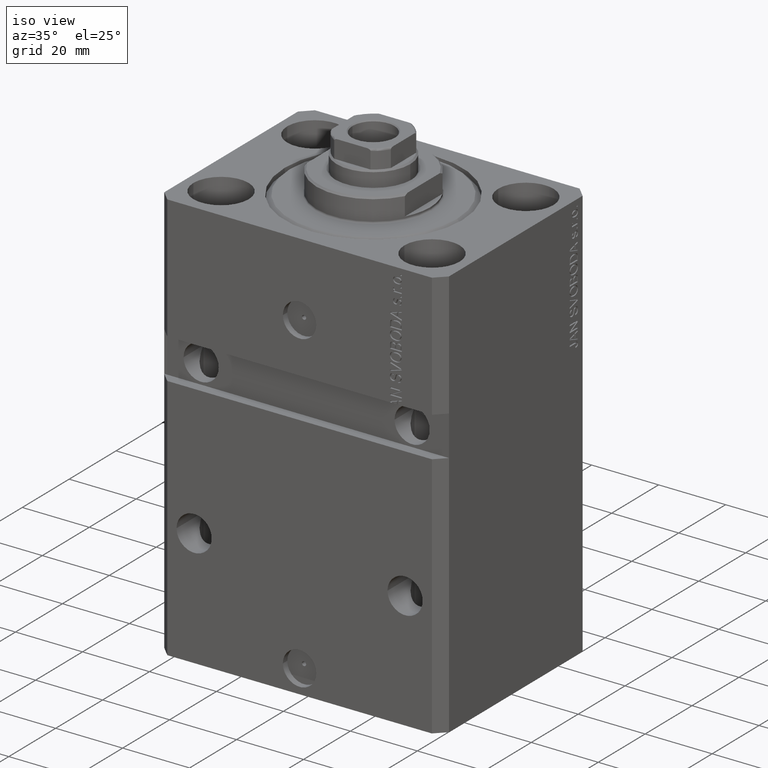
[diagram: clean part render]
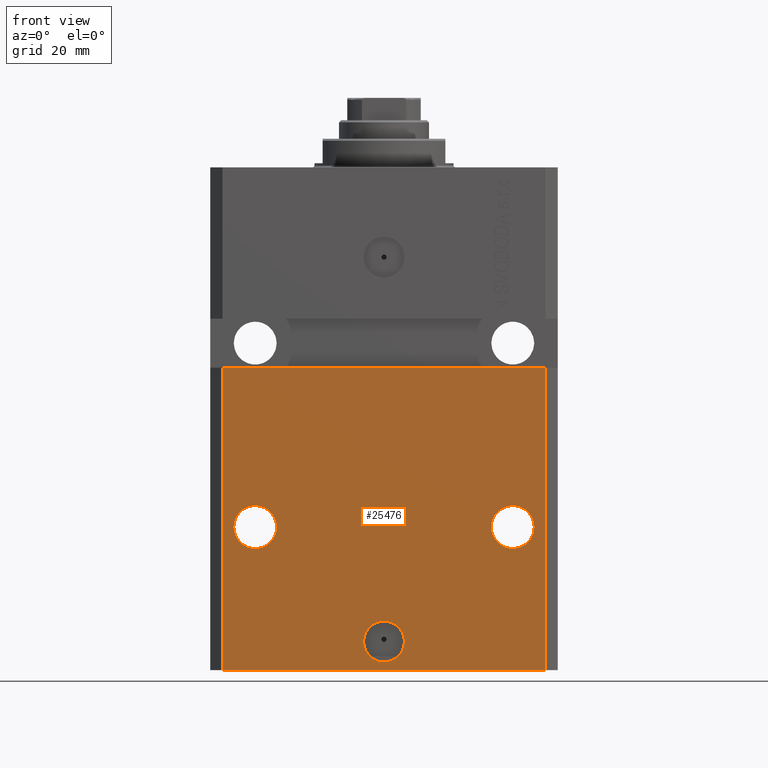
[diagram: tour spotlight — one face highlighted and labeled with its STEP entity id]
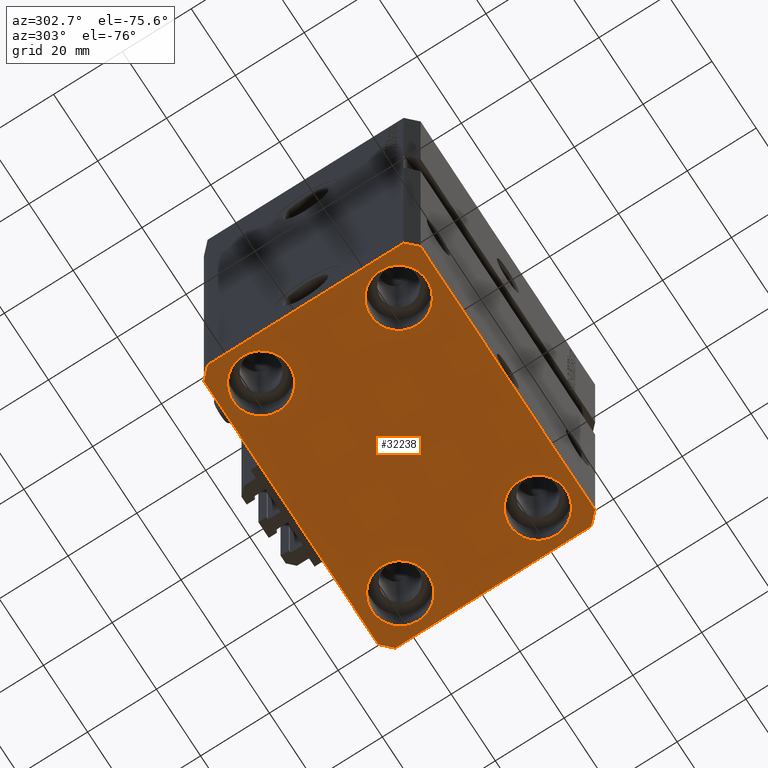
[diagram: tour spotlight — one face highlighted and labeled with its STEP entity id]
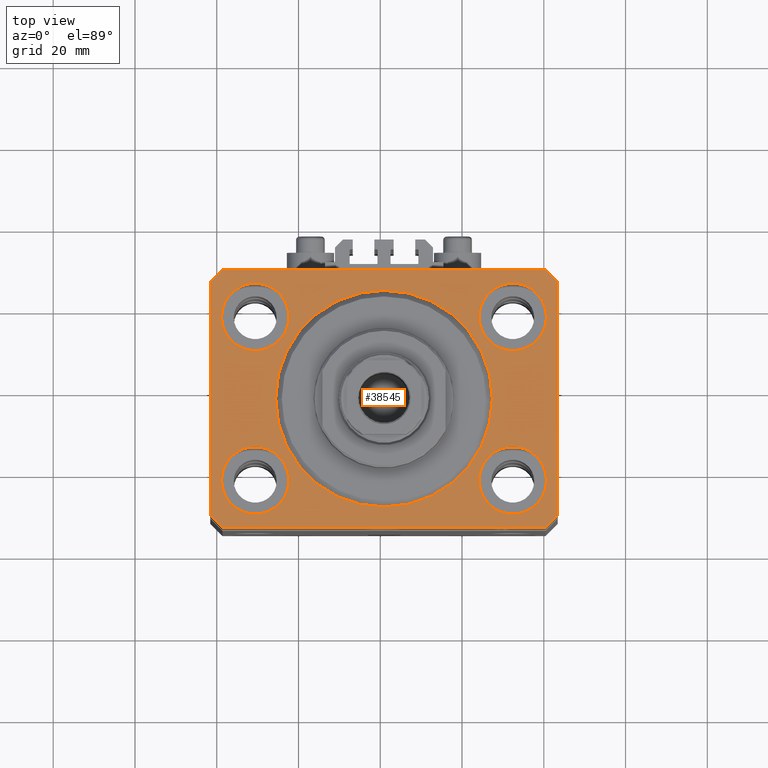
[diagram: tour spotlight — one face highlighted and labeled with its STEP entity id]
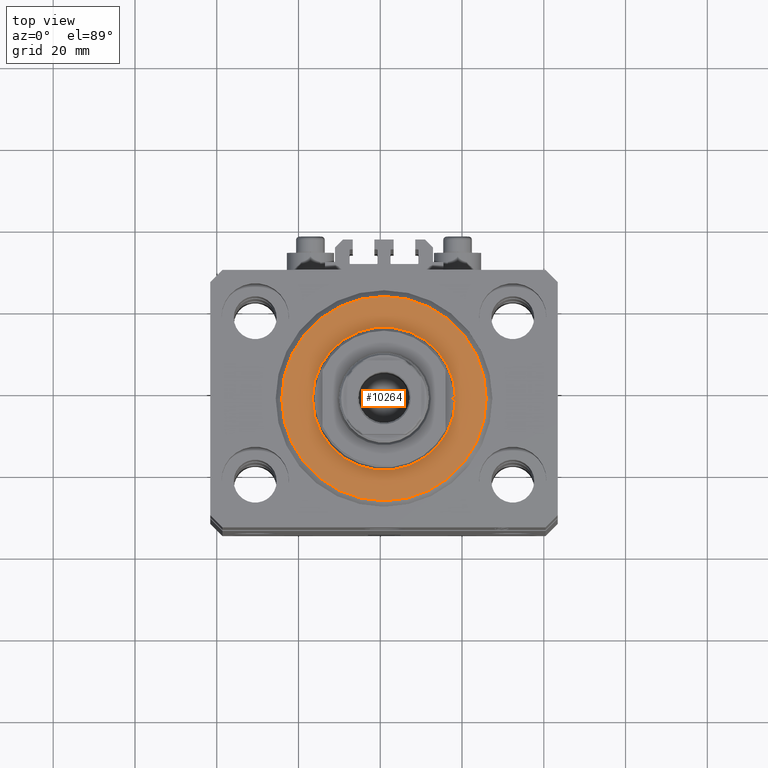
[diagram: tour spotlight — one face highlighted and labeled with its STEP entity id]
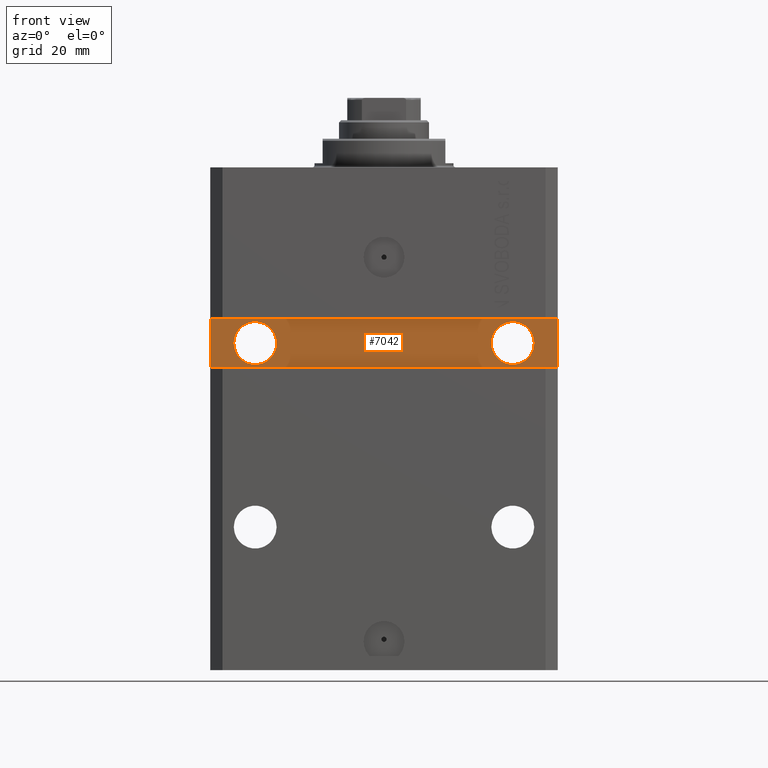
[diagram: tour spotlight — one face highlighted and labeled with its STEP entity id]
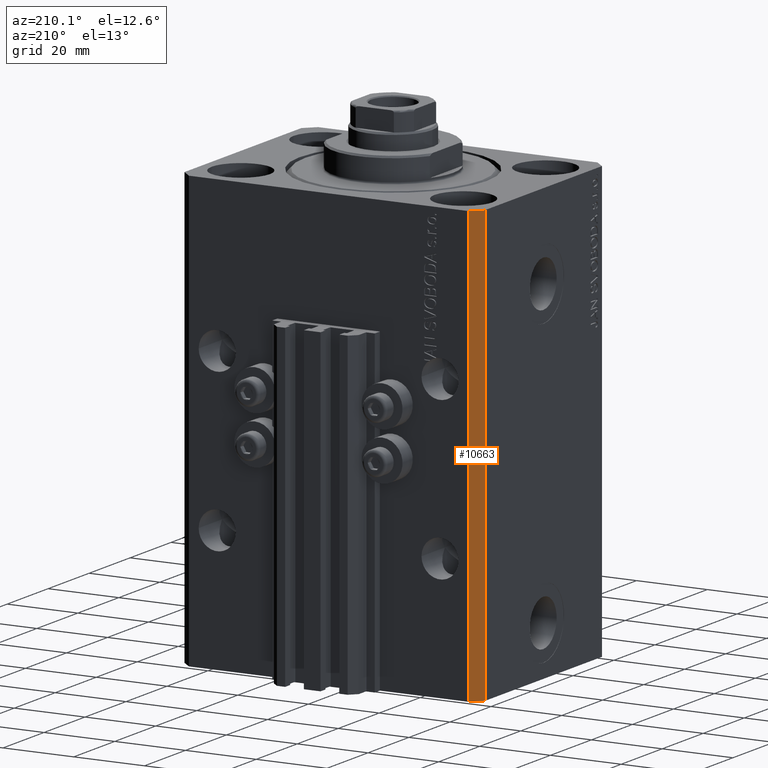
[diagram: tour spotlight — one face highlighted and labeled with its STEP entity id]
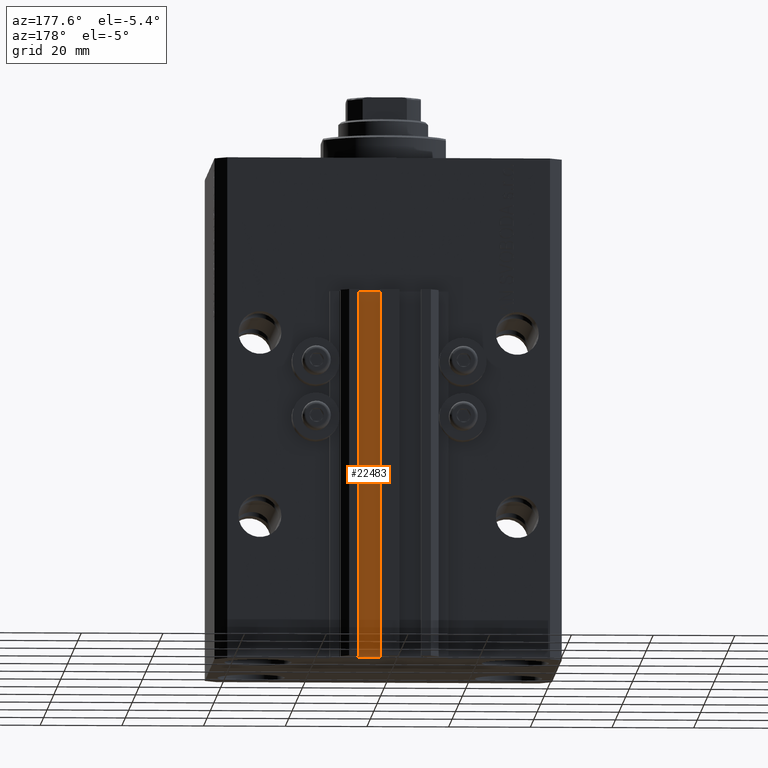
[diagram: tour spotlight — one face highlighted and labeled with its STEP entity id]
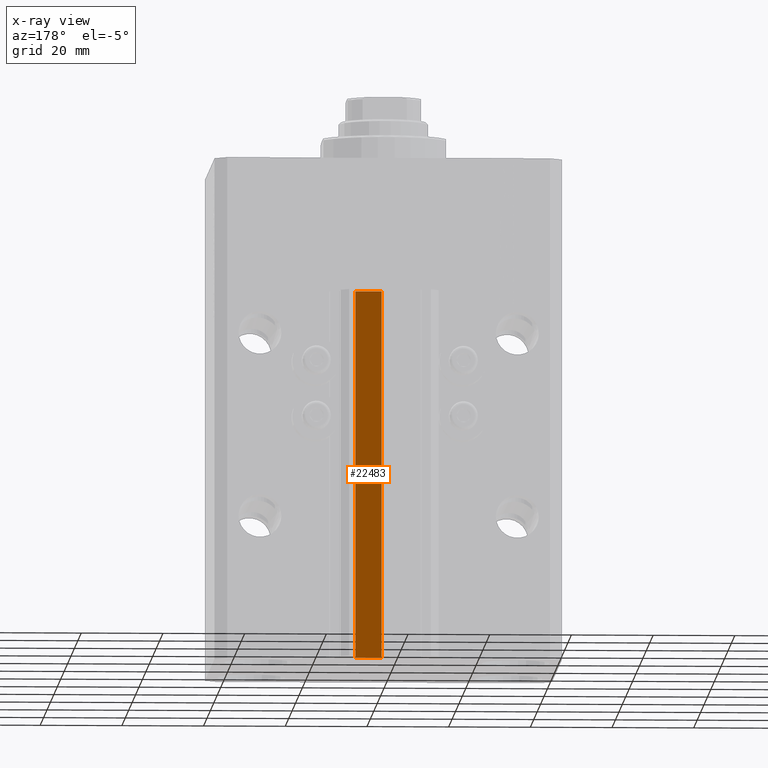
[diagram: x-ray of the same camera — body ghosted, this tour face saturated]
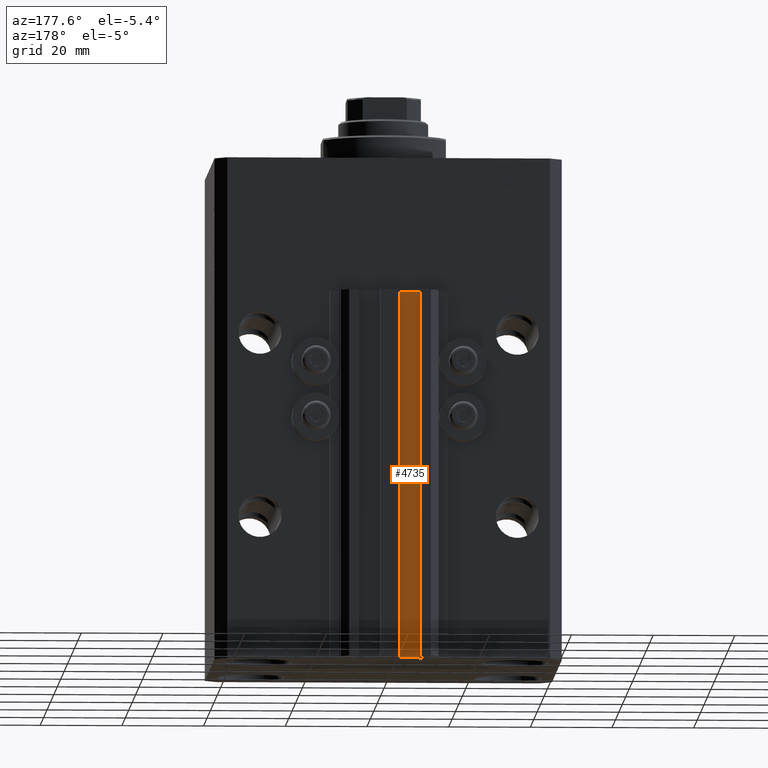
[diagram: tour spotlight — one face highlighted and labeled with its STEP entity id]
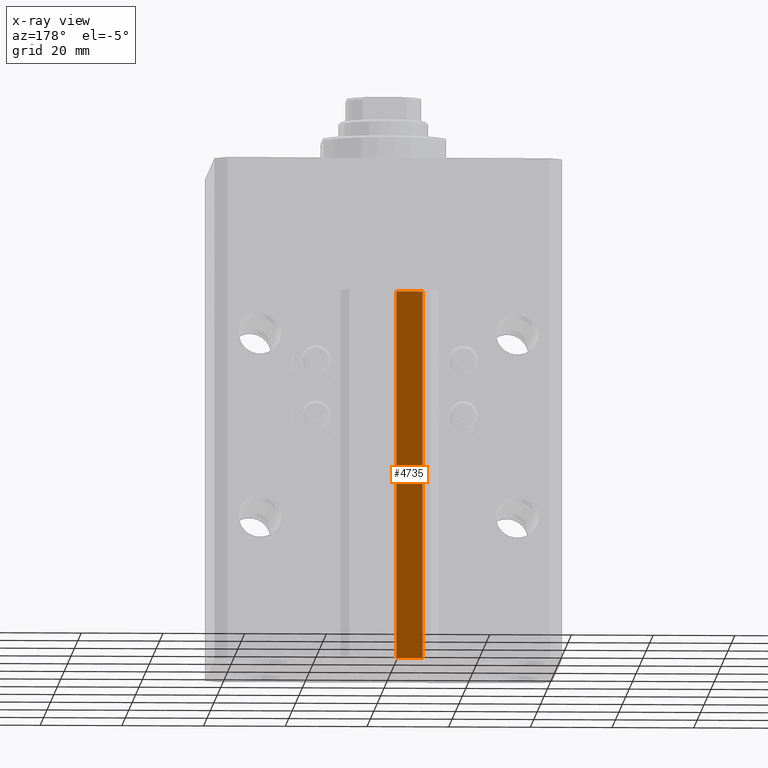
[diagram: x-ray of the same camera — body ghosted, this tour face saturated]
A machine part: a face-by-face anatomy tour. The part has 1107 B-rep faces; the first image is the clean iso view, then the 8 largest visible faces are spotlighted one at a time (largest first), each with its STEP entity span.

Face 1 — front view, entity #25476. In plain terms, the highlighted planar face has unit normal (0, -1, 0).
Definition (entity closure, byte-faithful):
#167 = CIRCLE ( 'NONE', #38984, 5.000000000000006217 ) ;
#1099 = VERTEX_POINT ( 'NONE', #45845 ) ;
#1200 = VERTEX_POINT ( 'NONE', #10046 ) ;
#2003 = DIRECTION ( 'NONE',  ( 1.000000000000000000, 0.000000000000000000, 0.000000000000000000 ) ) ;
#2201 = DIRECTION ( 'NONE',  ( 0.000000000000000000, -1.000000000000000000, 0.000000000000000000 ) ) ;
#2671 = LINE ( 'NONE', #24330, #44549 ) ;
#2808 = CARTESIAN_POINT ( 'NONE',  ( 31.50000000000001421, -31.49999999999999289, -88.00000000000000000 ) ) ;
#3024 = CIRCLE ( 'NONE', #25570, 5.249999999999997335 ) ;
#3371 = EDGE_CURVE ( 'NONE', #11616, #26621, #40846, .T. ) ;
#3809 = EDGE_CURVE ( 'NONE', #8807, #14315, #44738, .T. ) ;
#4399 = ORIENTED_EDGE ( 'NONE', *, *, #7545, .T. ) ;
#4445 = ORIENTED_EDGE ( 'NONE', *, *, #46640, .F. ) ;
#5144 = FACE_OUTER_BOUND ( 'NONE', #34444, .T. ) ;
#5614 = FACE_BOUND ( 'NONE', #31704, .T. ) ;
#6061 = CIRCLE ( 'NONE', #8393, 5.249999999999997335 ) ;
#7179 = DIRECTION ( 'NONE',  ( 1.176083712526788232E-16, -1.000000000000000000, 0.000000000000000000 ) ) ;
#7545 = EDGE_CURVE ( 'NONE', #1099, #1200, #36430, .T. ) ;
#7580 = CIRCLE ( 'NONE', #31676, 5.249999999999997335 ) ;
#7808 = EDGE_CURVE ( 'NONE', #29889, #24977, #7580, .T. ) ;
#7971 = CARTESIAN_POINT ( 'NONE',  ( 5.000000000000006217, -31.50000000000000000, -115.9999999999999858 ) ) ;
#8047 = DIRECTION ( 'NONE',  ( 1.176083712526788232E-16, -1.000000000000000000, 0.000000000000000000 ) ) ;
#8393 = AXIS2_PLACEMENT_3D ( 'NONE', #20031, #27342, #2003 ) ;
#8807 = VERTEX_POINT ( 'NONE', #44226 ) ;
#10046 = CARTESIAN_POINT ( 'NONE',  ( 39.50000000000001421, -31.49999999999999289, -48.99999999999997868 ) ) ;
#10462 = EDGE_CURVE ( 'NONE', #14315, #8807, #3024, .T. ) ;
#10642 = CARTESIAN_POINT ( 'NONE',  ( 39.50000000000000711, -31.50000000000000000, -123.0000000000000000 ) ) ;
#10644 = DIRECTION ( 'NONE',  ( 1.000000000000000000, 0.000000000000000000, 0.000000000000000000 ) ) ;
#11616 = VERTEX_POINT ( 'NONE', #34175 ) ;
#12926 = DIRECTION ( 'NONE',  ( 0.000000000000000000, -0.000000000000000000, -1.000000000000000000 ) ) ;
#12941 = DIRECTION ( 'NONE',  ( -1.000000000000000000, 0.000000000000000000, 0.000000000000000000 ) ) ;
#14315 = VERTEX_POINT ( 'NONE', #42967 ) ;
#14338 = AXIS2_PLACEMENT_3D ( 'NONE', #31188, #2201, #12926 ) ;
#15404 = EDGE_CURVE ( 'NONE', #41966, #36215, #27854, .T. ) ;
#15729 = CARTESIAN_POINT ( 'NONE',  ( -42.50000000000000000, -31.50000000000000711, -48.99999999999999289 ) ) ;
#16588 = DIRECTION ( 'NONE',  ( 1.176083712526788232E-16, -1.000000000000000000, 0.000000000000000000 ) ) ;
#16781 = AXIS2_PLACEMENT_3D ( 'NONE', #26223, #40805, #10644 ) ;
#18271 = CARTESIAN_POINT ( 'NONE',  ( 36.75000000000001421, -31.49999999999999289, -88.00000000000000000 ) ) ;
#19362 = ORIENTED_EDGE ( 'NONE', *, *, #7808, .F. ) ;
#20031 = CARTESIAN_POINT ( 'NONE',  ( 31.50000000000001421, -31.49999999999999289, -88.00000000000000000 ) ) ;
#20037 = EDGE_LOOP ( 'NONE', ( #24264, #38813 ) ) ;
#20895 = VECTOR ( 'NONE', #35619, 1000.000000000000000 ) ;
#21424 = AXIS2_PLACEMENT_3D ( 'NONE', #27779, #16588, #12941 ) ;
#22535 = DIRECTION ( 'NONE',  ( 1.000000000000000000, 1.632680918566406300E-16, 1.632680918566406300E-16 ) ) ;
#23693 = EDGE_CURVE ( 'NONE', #41966, #1099, #2671, .T. ) ;
#23968 = CARTESIAN_POINT ( 'NONE',  ( -39.50000000000000711, -31.50000000000000000, -123.0000000000000000 ) ) ;
#24264 = ORIENTED_EDGE ( 'NONE', *, *, #3809, .F. ) ;
#24330 = CARTESIAN_POINT ( 'NONE',  ( -39.50000000000000711, -31.50000000000000000, -123.0000000000000000 ) ) ;
#24977 = VERTEX_POINT ( 'NONE', #37384 ) ;
#25476 = ADVANCED_FACE ( 'NONE', ( #5614, #42599, #38473, #5144 ), #28003, .T. ) ;
#25488 = DIRECTION ( 'NONE',  ( 0.000000000000000000, 0.000000000000000000, 1.000000000000000000 ) ) ;
#25570 = AXIS2_PLACEMENT_3D ( 'NONE', #36761, #36519, #44062 ) ;
#26223 = CARTESIAN_POINT ( 'NONE',  ( 0.000000000000000000, -31.50000000000000000, -115.9999999999999858 ) ) ;
#26621 = VERTEX_POINT ( 'NONE', #7971 ) ;
#27342 = DIRECTION ( 'NONE',  ( 1.176083712526788232E-16, -1.000000000000000000, 0.000000000000000000 ) ) ;
#27779 = CARTESIAN_POINT ( 'NONE',  ( -31.50000000000001421, -31.50000000000000711, -88.00000000000000000 ) ) ;
#27854 = LINE ( 'NONE', #23968, #20895 ) ;
#28003 = PLANE ( 'NONE',  #14338 ) ;
#29020 = ORIENTED_EDGE ( 'NONE', *, *, #23693, .T. ) ;
#29889 = VERTEX_POINT ( 'NONE', #18271 ) ;
#29947 = CARTESIAN_POINT ( 'NONE',  ( 0.000000000000000000, -31.50000000000000000, -115.9999999999999858 ) ) ;
#31188 = CARTESIAN_POINT ( 'NONE',  ( -39.50000000000000711, -31.50000000000000000, -123.0000000000000000 ) ) ;
#31676 = AXIS2_PLACEMENT_3D ( 'NONE', #2808, #7179, #36372 ) ;
#31704 = EDGE_LOOP ( 'NONE', ( #4445, #38725 ) ) ;
#33159 = ORIENTED_EDGE ( 'NONE', *, *, #37001, .F. ) ;
#33790 = EDGE_CURVE ( 'NONE', #36215, #1200, #37611, .T. ) ;
#34175 = CARTESIAN_POINT ( 'NONE',  ( -5.000000000000006217, -31.50000000000000000, -115.9999999999999858 ) ) ;
#34444 = EDGE_LOOP ( 'NONE', ( #39042, #40773, #29020, #4399 ) ) ;
#35619 = DIRECTION ( 'NONE',  ( 0.000000000000000000, 0.000000000000000000, 1.000000000000000000 ) ) ;
#36215 = VERTEX_POINT ( 'NONE', #48142 ) ;
#36372 = DIRECTION ( 'NONE',  ( 1.000000000000000000, 0.000000000000000000, 0.000000000000000000 ) ) ;
#36430 = LINE ( 'NONE', #10642, #39446 ) ;
#36519 = DIRECTION ( 'NONE',  ( 1.176083712526788232E-16, -1.000000000000000000, 0.000000000000000000 ) ) ;
#36761 = CARTESIAN_POINT ( 'NONE',  ( -31.50000000000001421, -31.50000000000000711, -88.00000000000000000 ) ) ;
#37001 = EDGE_CURVE ( 'NONE', #24977, #29889, #6061, .T. ) ;
#37384 = CARTESIAN_POINT ( 'NONE',  ( 26.25000000000001776, -31.49999999999999289, -88.00000000000000000 ) ) ;
#37541 = CARTESIAN_POINT ( 'NONE',  ( -39.50000000000000711, -31.50000000000000000, -123.0000000000000000 ) ) ;
#37611 = LINE ( 'NONE', #15729, #38575 ) ;
#38473 = FACE_BOUND ( 'NONE', #20037, .T. ) ;
#38575 = VECTOR ( 'NONE', #22535, 1000.000000000000000 ) ;
#38725 = ORIENTED_EDGE ( 'NONE', *, *, #3371, .F. ) ;
#38813 = ORIENTED_EDGE ( 'NONE', *, *, #10462, .F. ) ;
#38984 = AXIS2_PLACEMENT_3D ( 'NONE', #29947, #8047, #45507 ) ;
#39042 = ORIENTED_EDGE ( 'NONE', *, *, #33790, .F. ) ;
#39446 = VECTOR ( 'NONE', #25488, 1000.000000000000000 ) ;
#39643 = DIRECTION ( 'NONE',  ( 1.000000000000000000, 0.000000000000000000, 0.000000000000000000 ) ) ;
#39999 = EDGE_LOOP ( 'NONE', ( #19362, #33159 ) ) ;
#40773 = ORIENTED_EDGE ( 'NONE', *, *, #15404, .F. ) ;
#40805 = DIRECTION ( 'NONE',  ( 1.176083712526788232E-16, -1.000000000000000000, 0.000000000000000000 ) ) ;
#40846 = CIRCLE ( 'NONE', #16781, 5.000000000000006217 ) ;
#41966 = VERTEX_POINT ( 'NONE', #37541 ) ;
#42599 = FACE_BOUND ( 'NONE', #39999, .T. ) ;
#42967 = CARTESIAN_POINT ( 'NONE',  ( -36.75000000000001421, -31.50000000000000711, -88.00000000000000000 ) ) ;
#44062 = DIRECTION ( 'NONE',  ( -1.000000000000000000, 0.000000000000000000, 0.000000000000000000 ) ) ;
#44226 = CARTESIAN_POINT ( 'NONE',  ( -26.25000000000001776, -31.50000000000000711, -88.00000000000000000 ) ) ;
#44549 = VECTOR ( 'NONE', #39643, 1000.000000000000000 ) ;
#44738 = CIRCLE ( 'NONE', #21424, 5.249999999999997335 ) ;
#45507 = DIRECTION ( 'NONE',  ( 1.000000000000000000, 0.000000000000000000, 0.000000000000000000 ) ) ;
#45845 = CARTESIAN_POINT ( 'NONE',  ( 39.50000000000000711, -31.50000000000000000, -123.0000000000000000 ) ) ;
#46640 = EDGE_CURVE ( 'NONE', #26621, #11616, #167, .T. ) ;
#48142 = CARTESIAN_POINT ( 'NONE',  ( -39.50000000000000000, -31.50000000000000711, -48.99999999999999289 ) ) ;

Face 2 — auxiliary view, entity #32238. In plain terms, the highlighted planar face has unit normal (0, 0, 1).
Definition (entity closure, byte-faithful):
#286 = AXIS2_PLACEMENT_3D ( 'NONE', #34037, #41348, #41099 ) ;
#339 = ORIENTED_EDGE ( 'NONE', *, *, #539, .F. ) ;
#539 = EDGE_CURVE ( 'NONE', #2208, #47676, #28474, .T. ) ;
#826 = LINE ( 'NONE', #1294, #12340 ) ;
#1099 = VERTEX_POINT ( 'NONE', #45845 ) ;
#1226 = ORIENTED_EDGE ( 'NONE', *, *, #18344, .F. ) ;
#1294 = CARTESIAN_POINT ( 'NONE',  ( -42.50000000000000000, -28.50000000000000000, -123.0000000000000000 ) ) ;
#1647 = EDGE_CURVE ( 'NONE', #32322, #8686, #35320, .T. ) ;
#1648 = LINE ( 'NONE', #42508, #9383 ) ;
#1935 = VERTEX_POINT ( 'NONE', #2810 ) ;
#2208 = VERTEX_POINT ( 'NONE', #2464 ) ;
#2464 = CARTESIAN_POINT ( 'NONE',  ( 39.50000000000056843, 31.50000000000000000, -123.0000000000000000 ) ) ;
#2513 = EDGE_LOOP ( 'NONE', ( #46931, #42410 ) ) ;
#2671 = LINE ( 'NONE', #24330, #44549 ) ;
#2810 = CARTESIAN_POINT ( 'NONE',  ( -42.50000000000000000, 28.50000000000000000, -123.0000000000000000 ) ) ;
#3908 = VERTEX_POINT ( 'NONE', #35546 ) ;
#3918 = DIRECTION ( 'NONE',  ( -0.7071067811865471286, -0.7071067811865479058, 0.000000000000000000 ) ) ;
#3948 = CARTESIAN_POINT ( 'NONE',  ( -31.50000000000000000, 20.00000000000000000, -123.0000000000000000 ) ) ;
#4223 = CARTESIAN_POINT ( 'NONE',  ( -42.50000000000000000, -28.50000000000000000, -123.0000000000000000 ) ) ;
#4956 = CARTESIAN_POINT ( 'NONE',  ( -31.50000000000000000, -20.00000000000000000, -123.0000000000000000 ) ) ;
#5019 = VECTOR ( 'NONE', #24824, 1000.000000000000000 ) ;
#5115 = ORIENTED_EDGE ( 'NONE', *, *, #23270, .T. ) ;
#5175 = CARTESIAN_POINT ( 'NONE',  ( 39.74999999999999289, -20.00000000000000000, -123.0000000000000000 ) ) ;
#5415 = FACE_BOUND ( 'NONE', #2513, .T. ) ;
#6093 = ORIENTED_EDGE ( 'NONE', *, *, #23910, .T. ) ;
#6862 = ORIENTED_EDGE ( 'NONE', *, *, #38240, .T. ) ;
#7369 = LINE ( 'NONE', #33156, #13705 ) ;
#7785 = DIRECTION ( 'NONE',  ( -0.000000000000000000, -0.000000000000000000, 1.000000000000000000 ) ) ;
#8136 = DIRECTION ( 'NONE',  ( 1.000000000000000000, 0.000000000000000000, 0.000000000000000000 ) ) ;
#8227 = CARTESIAN_POINT ( 'NONE',  ( -39.75000000000000000, -20.00000000000000000, -123.0000000000000000 ) ) ;
#8465 = VECTOR ( 'NONE', #3918, 1000.000000000000000 ) ;
#8686 = VERTEX_POINT ( 'NONE', #28200 ) ;
#8905 = CARTESIAN_POINT ( 'NONE',  ( 31.50000000000000000, 20.00000000000001066, -123.0000000000000000 ) ) ;
#9177 = VERTEX_POINT ( 'NONE', #16887 ) ;
#9185 = AXIS2_PLACEMENT_3D ( 'NONE', #21941, #44320, #33373 ) ;
#9383 = VECTOR ( 'NONE', #19894, 1000.000000000000000 ) ;
#9407 = ORIENTED_EDGE ( 'NONE', *, *, #21228, .T. ) ;
#9437 = EDGE_CURVE ( 'NONE', #39550, #41966, #826, .T. ) ;
#9545 = VERTEX_POINT ( 'NONE', #5175 ) ;
#10261 = DIRECTION ( 'NONE',  ( 0.000000000000000000, 0.000000000000000000, 1.000000000000000000 ) ) ;
#10730 = LINE ( 'NONE', #22655, #8465 ) ;
#11030 = DIRECTION ( 'NONE',  ( 0.7071067811865483499, 0.7071067811865466846, 0.000000000000000000 ) ) ;
#11426 = AXIS2_PLACEMENT_3D ( 'NONE', #46051, #10261, #36998 ) ;
#11738 = DIRECTION ( 'NONE',  ( -0.000000000000000000, -0.000000000000000000, 1.000000000000000000 ) ) ;
#11969 = CARTESIAN_POINT ( 'NONE',  ( 23.25000000000000355, -20.00000000000000000, -123.0000000000000000 ) ) ;
#12105 = CARTESIAN_POINT ( 'NONE',  ( -39.50000000000000711, 31.50000000000000000, -123.0000000000000000 ) ) ;
#12340 = VECTOR ( 'NONE', #41203, 1000.000000000000000 ) ;
#12842 = DIRECTION ( 'NONE',  ( 1.000000000000000000, 0.000000000000000000, 0.000000000000000000 ) ) ;
#13328 = DIRECTION ( 'NONE',  ( -0.000000000000000000, -0.000000000000000000, 1.000000000000000000 ) ) ;
#13672 = FACE_OUTER_BOUND ( 'NONE', #47073, .T. ) ;
#13705 = VECTOR ( 'NONE', #11030, 1000.000000000000000 ) ;
#14392 = CARTESIAN_POINT ( 'NONE',  ( -39.75000000000000000, 20.00000000000000000, -123.0000000000000000 ) ) ;
#14501 = ORIENTED_EDGE ( 'NONE', *, *, #9437, .F. ) ;
#15710 = AXIS2_PLACEMENT_3D ( 'NONE', #8905, #39536, #24458 ) ;
#16887 = CARTESIAN_POINT ( 'NONE',  ( 23.25000000000000355, 20.00000000000001066, -123.0000000000000000 ) ) ;
#16959 = CARTESIAN_POINT ( 'NONE',  ( 31.50000000000000000, -20.00000000000000000, -123.0000000000000000 ) ) ;
#18344 = EDGE_CURVE ( 'NONE', #27301, #35967, #20661, .T. ) ;
#18999 = CIRCLE ( 'NONE', #39194, 8.250000000000000000 ) ;
#19196 = CARTESIAN_POINT ( 'NONE',  ( 42.50000000000051870, 28.49999999999995381, -123.0000000000000000 ) ) ;
#19894 = DIRECTION ( 'NONE',  ( 0.000000000000000000, -1.000000000000000000, 0.000000000000000000 ) ) ;
#20661 = LINE ( 'NONE', #38930, #40453 ) ;
#20886 = ORIENTED_EDGE ( 'NONE', *, *, #36368, .T. ) ;
#21228 = EDGE_CURVE ( 'NONE', #9177, #3908, #40560, .T. ) ;
#21538 = AXIS2_PLACEMENT_3D ( 'NONE', #16959, #13328, #12842 ) ;
#21572 = ORIENTED_EDGE ( 'NONE', *, *, #23693, .F. ) ;
#21941 = CARTESIAN_POINT ( 'NONE',  ( 31.50000000000000000, -20.00000000000000000, -123.0000000000000000 ) ) ;
#22093 = CARTESIAN_POINT ( 'NONE',  ( 42.50000000000000711, -28.50000000000000355, -123.0000000000000000 ) ) ;
#22655 = CARTESIAN_POINT ( 'NONE',  ( -39.50000000000000711, 31.50000000000000000, -123.0000000000000000 ) ) ;
#23110 = DIRECTION ( 'NONE',  ( 1.000000000000000000, 0.000000000000000000, 0.000000000000000000 ) ) ;
#23270 = EDGE_CURVE ( 'NONE', #46947, #42358, #47671, .T. ) ;
#23693 = EDGE_CURVE ( 'NONE', #41966, #1099, #2671, .T. ) ;
#23910 = EDGE_CURVE ( 'NONE', #3908, #9177, #29800, .T. ) ;
#24152 = EDGE_CURVE ( 'NONE', #42358, #46947, #26752, .T. ) ;
#24330 = CARTESIAN_POINT ( 'NONE',  ( -39.50000000000000711, -31.50000000000000000, -123.0000000000000000 ) ) ;
#24458 = DIRECTION ( 'NONE',  ( 1.000000000000000000, 0.000000000000000000, 0.000000000000000000 ) ) ;
#24824 = DIRECTION ( 'NONE',  ( -1.000000000000000000, 0.000000000000000000, 0.000000000000000000 ) ) ;
#24829 = EDGE_LOOP ( 'NONE', ( #5115, #43029 ) ) ;
#25335 = EDGE_CURVE ( 'NONE', #8686, #32322, #18999, .T. ) ;
#26752 = CIRCLE ( 'NONE', #40692, 8.250000000000000000 ) ;
#27301 = VERTEX_POINT ( 'NONE', #22093 ) ;
#27477 = CARTESIAN_POINT ( 'NONE',  ( -31.50000000000000000, 20.00000000000000000, -123.0000000000000000 ) ) ;
#28200 = CARTESIAN_POINT ( 'NONE',  ( -23.25000000000000000, 20.00000000000000000, -123.0000000000000000 ) ) ;
#28271 = FACE_BOUND ( 'NONE', #24829, .T. ) ;
#28474 = LINE ( 'NONE', #46477, #5019 ) ;
#29800 = CIRCLE ( 'NONE', #286, 8.249999999999992895 ) ;
#30181 = CIRCLE ( 'NONE', #9185, 8.249999999999992895 ) ;
#30224 = ORIENTED_EDGE ( 'NONE', *, *, #47011, .F. ) ;
#30256 = VECTOR ( 'NONE', #36947, 1000.000000000000114 ) ;
#31221 = PLANE ( 'NONE',  #11426 ) ;
#31288 = EDGE_CURVE ( 'NONE', #1099, #27301, #7369, .T. ) ;
#32238 = ADVANCED_FACE ( 'NONE', ( #28271, #38740, #35801, #5415, #13672 ), #31221, .F. ) ;
#32322 = VERTEX_POINT ( 'NONE', #14392 ) ;
#33156 = CARTESIAN_POINT ( 'NONE',  ( 39.50000000000000711, -31.50000000000000000, -123.0000000000000000 ) ) ;
#33373 = DIRECTION ( 'NONE',  ( 1.000000000000000000, 0.000000000000000000, 0.000000000000000000 ) ) ;
#34037 = CARTESIAN_POINT ( 'NONE',  ( 31.50000000000000000, 20.00000000000001066, -123.0000000000000000 ) ) ;
#34379 = EDGE_LOOP ( 'NONE', ( #9407, #6093 ) ) ;
#34632 = DIRECTION ( 'NONE',  ( 1.000000000000000000, 0.000000000000000000, 0.000000000000000000 ) ) ;
#35040 = DIRECTION ( 'NONE',  ( 8.886653596232072440E-15, 1.000000000000000000, 0.000000000000000000 ) ) ;
#35320 = CIRCLE ( 'NONE', #37684, 8.250000000000000000 ) ;
#35546 = CARTESIAN_POINT ( 'NONE',  ( 39.74999999999999289, 20.00000000000001066, -123.0000000000000000 ) ) ;
#35801 = FACE_BOUND ( 'NONE', #34379, .T. ) ;
#35967 = VERTEX_POINT ( 'NONE', #37966 ) ;
#36368 = EDGE_CURVE ( 'NONE', #38322, #9545, #42529, .T. ) ;
#36456 = ORIENTED_EDGE ( 'NONE', *, *, #40216, .F. ) ;
#36947 = DIRECTION ( 'NONE',  ( -0.7071067811865356934, 0.7071067811865594521, 0.000000000000000000 ) ) ;
#36998 = DIRECTION ( 'NONE',  ( 1.000000000000000000, 0.000000000000000000, -0.000000000000000000 ) ) ;
#37270 = DIRECTION ( 'NONE',  ( 1.000000000000000000, 0.000000000000000000, 0.000000000000000000 ) ) ;
#37541 = CARTESIAN_POINT ( 'NONE',  ( -39.50000000000000711, -31.50000000000000000, -123.0000000000000000 ) ) ;
#37684 = AXIS2_PLACEMENT_3D ( 'NONE', #27477, #7785, #23110 ) ;
#37966 = CARTESIAN_POINT ( 'NONE',  ( 42.50000000000051870, 28.49999999999995381, -123.0000000000000000 ) ) ;
#38240 = EDGE_CURVE ( 'NONE', #9545, #38322, #30181, .T. ) ;
#38307 = ORIENTED_EDGE ( 'NONE', *, *, #38840, .F. ) ;
#38322 = VERTEX_POINT ( 'NONE', #11969 ) ;
#38740 = FACE_BOUND ( 'NONE', #46399, .T. ) ;
#38840 = EDGE_CURVE ( 'NONE', #47676, #1935, #10730, .T. ) ;
#38930 = CARTESIAN_POINT ( 'NONE',  ( 42.50000000000000711, -28.50000000000000355, -123.0000000000000000 ) ) ;
#39194 = AXIS2_PLACEMENT_3D ( 'NONE', #3948, #11738, #37270 ) ;
#39536 = DIRECTION ( 'NONE',  ( -0.000000000000000000, -0.000000000000000000, 1.000000000000000000 ) ) ;
#39550 = VERTEX_POINT ( 'NONE', #4223 ) ;
#39643 = DIRECTION ( 'NONE',  ( 1.000000000000000000, 0.000000000000000000, 0.000000000000000000 ) ) ;
#39895 = AXIS2_PLACEMENT_3D ( 'NONE', #4956, #45827, #34632 ) ;
#40216 = EDGE_CURVE ( 'NONE', #35967, #2208, #45230, .T. ) ;
#40453 = VECTOR ( 'NONE', #35040, 1000.000000000000000 ) ;
#40560 = CIRCLE ( 'NONE', #15710, 8.249999999999992895 ) ;
#40692 = AXIS2_PLACEMENT_3D ( 'NONE', #41225, #45113, #8136 ) ;
#41074 = ORIENTED_EDGE ( 'NONE', *, *, #31288, .F. ) ;
#41099 = DIRECTION ( 'NONE',  ( 1.000000000000000000, 0.000000000000000000, 0.000000000000000000 ) ) ;
#41203 = DIRECTION ( 'NONE',  ( 0.7071067811865471286, -0.7071067811865479058, 0.000000000000000000 ) ) ;
#41225 = CARTESIAN_POINT ( 'NONE',  ( -31.50000000000000000, -20.00000000000000000, -123.0000000000000000 ) ) ;
#41348 = DIRECTION ( 'NONE',  ( -0.000000000000000000, -0.000000000000000000, 1.000000000000000000 ) ) ;
#41619 = CARTESIAN_POINT ( 'NONE',  ( -23.25000000000000000, -20.00000000000000000, -123.0000000000000000 ) ) ;
#41966 = VERTEX_POINT ( 'NONE', #37541 ) ;
#42358 = VERTEX_POINT ( 'NONE', #41619 ) ;
#42410 = ORIENTED_EDGE ( 'NONE', *, *, #25335, .T. ) ;
#42508 = CARTESIAN_POINT ( 'NONE',  ( -42.50000000000000000, 28.50000000000000000, -123.0000000000000000 ) ) ;
#42529 = CIRCLE ( 'NONE', #21538, 8.249999999999992895 ) ;
#43029 = ORIENTED_EDGE ( 'NONE', *, *, #24152, .T. ) ;
#44320 = DIRECTION ( 'NONE',  ( -0.000000000000000000, -0.000000000000000000, 1.000000000000000000 ) ) ;
#44549 = VECTOR ( 'NONE', #39643, 1000.000000000000000 ) ;
#45113 = DIRECTION ( 'NONE',  ( -0.000000000000000000, -0.000000000000000000, 1.000000000000000000 ) ) ;
#45230 = LINE ( 'NONE', #19196, #30256 ) ;
#45827 = DIRECTION ( 'NONE',  ( -0.000000000000000000, -0.000000000000000000, 1.000000000000000000 ) ) ;
#45845 = CARTESIAN_POINT ( 'NONE',  ( 39.50000000000000711, -31.50000000000000000, -123.0000000000000000 ) ) ;
#46051 = CARTESIAN_POINT ( 'NONE',  ( 0.000000000000000000, 0.000000000000000000, -123.0000000000000000 ) ) ;
#46399 = EDGE_LOOP ( 'NONE', ( #20886, #6862 ) ) ;
#46477 = CARTESIAN_POINT ( 'NONE',  ( 39.50000000000056843, 31.50000000000000000, -123.0000000000000000 ) ) ;
#46931 = ORIENTED_EDGE ( 'NONE', *, *, #1647, .T. ) ;
#46947 = VERTEX_POINT ( 'NONE', #8227 ) ;
#47011 = EDGE_CURVE ( 'NONE', #1935, #39550, #1648, .T. ) ;
#47073 = EDGE_LOOP ( 'NONE', ( #339, #36456, #1226, #41074, #21572, #14501, #30224, #38307 ) ) ;
#47671 = CIRCLE ( 'NONE', #39895, 8.250000000000000000 ) ;
#47676 = VERTEX_POINT ( 'NONE', #12105 ) ;

Face 3 — top view, entity #38545. In plain terms, the highlighted planar face has unit normal (0, 0, 1).
Definition (entity closure, byte-faithful):
#369 = CARTESIAN_POINT ( 'NONE',  ( -39.75000000000000000, -20.00000000000000000, 0.000000000000000000 ) ) ;
#514 = DIRECTION ( 'NONE',  ( 0.000000000000000000, 0.000000000000000000, 1.000000000000000000 ) ) ;
#1079 = VERTEX_POINT ( 'NONE', #4500 ) ;
#1685 = ORIENTED_EDGE ( 'NONE', *, *, #27665, .F. ) ;
#1826 = CARTESIAN_POINT ( 'NONE',  ( 39.50000000000000711, -31.50000000000000000, 0.000000000000000000 ) ) ;
#1841 = FACE_BOUND ( 'NONE', #36649, .T. ) ;
#1850 = CARTESIAN_POINT ( 'NONE',  ( 42.50000000000051870, 28.49999999999995381, 0.000000000000000000 ) ) ;
#2040 = EDGE_CURVE ( 'NONE', #44181, #26488, #40749, .T. ) ;
#2060 = EDGE_CURVE ( 'NONE', #1079, #44181, #35895, .T. ) ;
#2105 = VERTEX_POINT ( 'NONE', #31203 ) ;
#2116 = ORIENTED_EDGE ( 'NONE', *, *, #2060, .T. ) ;
#2803 = EDGE_CURVE ( 'NONE', #8570, #4802, #25288, .T. ) ;
#2827 = CARTESIAN_POINT ( 'NONE',  ( -31.50000000000000000, -20.00000000000000000, 0.000000000000000000 ) ) ;
#2989 = ORIENTED_EDGE ( 'NONE', *, *, #20920, .T. ) ;
#3191 = AXIS2_PLACEMENT_3D ( 'NONE', #6914, #21752, #3269 ) ;
#3269 = DIRECTION ( 'NONE',  ( 1.000000000000000000, 0.000000000000000000, 0.000000000000000000 ) ) ;
#3402 = VERTEX_POINT ( 'NONE', #36907 ) ;
#3733 = CIRCLE ( 'NONE', #44146, 26.50000000000000355 ) ;
#4500 = CARTESIAN_POINT ( 'NONE',  ( 39.50000000000056843, 31.50000000000000000, 0.000000000000000000 ) ) ;
#4582 = CIRCLE ( 'NONE', #34862, 8.250000000000000000 ) ;
#4720 = DIRECTION ( 'NONE',  ( 0.000000000000000000, -1.000000000000000000, 0.000000000000000000 ) ) ;
#4768 = DIRECTION ( 'NONE',  ( -0.7071067811865356934, 0.7071067811865594521, 0.000000000000000000 ) ) ;
#4802 = VERTEX_POINT ( 'NONE', #31729 ) ;
#4818 = ORIENTED_EDGE ( 'NONE', *, *, #19152, .F. ) ;
#4825 = DIRECTION ( 'NONE',  ( 0.000000000000000000, 0.000000000000000000, 1.000000000000000000 ) ) ;
#4848 = DIRECTION ( 'NONE',  ( 1.000000000000000000, 0.000000000000000000, -0.000000000000000000 ) ) ;
#5031 = AXIS2_PLACEMENT_3D ( 'NONE', #7063, #43798, #32131 ) ;
#5845 = CIRCLE ( 'NONE', #43907, 8.250000000000000000 ) ;
#5964 = DIRECTION ( 'NONE',  ( 1.000000000000000000, 0.000000000000000000, 0.000000000000000000 ) ) ;
#6448 = FACE_BOUND ( 'NONE', #32554, .T. ) ;
#6486 = CARTESIAN_POINT ( 'NONE',  ( 42.50000000000051870, 28.49999999999995381, 0.000000000000000000 ) ) ;
#6523 = DIRECTION ( 'NONE',  ( 0.000000000000000000, 0.000000000000000000, 1.000000000000000000 ) ) ;
#6914 = CARTESIAN_POINT ( 'NONE',  ( -31.50000000000000000, 20.00000000000000000, 0.000000000000000000 ) ) ;
#7046 = EDGE_CURVE ( 'NONE', #38915, #26048, #38298, .T. ) ;
#7063 = CARTESIAN_POINT ( 'NONE',  ( 0.000000000000000000, 0.000000000000000000, 0.000000000000000000 ) ) ;
#7311 = EDGE_CURVE ( 'NONE', #4802, #8570, #12281, .T. ) ;
#7790 = VERTEX_POINT ( 'NONE', #10831 ) ;
#8269 = CARTESIAN_POINT ( 'NONE',  ( -42.50000000000000000, 28.50000000000000000, 0.000000000000000000 ) ) ;
#8570 = VERTEX_POINT ( 'NONE', #22642 ) ;
#8732 = ORIENTED_EDGE ( 'NONE', *, *, #2803, .F. ) ;
#8854 = DIRECTION ( 'NONE',  ( 8.886653596232072440E-15, 1.000000000000000000, 0.000000000000000000 ) ) ;
#9101 = VERTEX_POINT ( 'NONE', #38319 ) ;
#9608 = FACE_OUTER_BOUND ( 'NONE', #47857, .T. ) ;
#10043 = DIRECTION ( 'NONE',  ( 0.7071067811865483499, 0.7071067811865466846, 0.000000000000000000 ) ) ;
#10155 = VECTOR ( 'NONE', #4768, 1000.000000000000114 ) ;
#10590 = ORIENTED_EDGE ( 'NONE', *, *, #46912, .F. ) ;
#10746 = AXIS2_PLACEMENT_3D ( 'NONE', #21276, #17625, #4848 ) ;
#10831 = CARTESIAN_POINT ( 'NONE',  ( -39.50000000000000711, -31.50000000000000000, 0.000000000000000000 ) ) ;
#11178 = VERTEX_POINT ( 'NONE', #15913 ) ;
#11563 = DIRECTION ( 'NONE',  ( 0.000000000000000000, 0.000000000000000000, 1.000000000000000000 ) ) ;
#12077 = VECTOR ( 'NONE', #43911, 1000.000000000000000 ) ;
#12281 = CIRCLE ( 'NONE', #41790, 8.249999999999992895 ) ;
#12465 = DIRECTION ( 'NONE',  ( 1.000000000000000000, 0.000000000000000000, 0.000000000000000000 ) ) ;
#12543 = ORIENTED_EDGE ( 'NONE', *, *, #7311, .F. ) ;
#12861 = AXIS2_PLACEMENT_3D ( 'NONE', #42709, #40008, #5964 ) ;
#13576 = LINE ( 'NONE', #25007, #30477 ) ;
#13751 = FACE_BOUND ( 'NONE', #40452, .T. ) ;
#13789 = LINE ( 'NONE', #6486, #10155 ) ;
#14592 = CARTESIAN_POINT ( 'NONE',  ( -42.50000000000000000, -28.50000000000000000, 0.000000000000000000 ) ) ;
#14946 = VECTOR ( 'NONE', #10043, 1000.000000000000000 ) ;
#15913 = CARTESIAN_POINT ( 'NONE',  ( 39.74999999999999289, -20.00000000000000000, 0.000000000000000000 ) ) ;
#16742 = DIRECTION ( 'NONE',  ( 1.000000000000000000, 0.000000000000000000, 0.000000000000000000 ) ) ;
#17069 = CARTESIAN_POINT ( 'NONE',  ( 42.50000000000000711, -28.50000000000000355, 0.000000000000000000 ) ) ;
#17389 = FACE_BOUND ( 'NONE', #22451, .T. ) ;
#17625 = DIRECTION ( 'NONE',  ( 0.000000000000000000, 0.000000000000000000, 1.000000000000000000 ) ) ;
#17888 = DIRECTION ( 'NONE',  ( -0.7071067811865471286, -0.7071067811865479058, 0.000000000000000000 ) ) ;
#18461 = LINE ( 'NONE', #14592, #36330 ) ;
#18808 = CIRCLE ( 'NONE', #46007, 8.249999999999992895 ) ;
#19029 = CIRCLE ( 'NONE', #5031, 26.50000000000000355 ) ;
#19152 = EDGE_CURVE ( 'NONE', #26698, #3402, #28060, .T. ) ;
#19731 = ORIENTED_EDGE ( 'NONE', *, *, #33034, .T. ) ;
#19859 = CARTESIAN_POINT ( 'NONE',  ( -42.50000000000000000, -28.50000000000000000, 0.000000000000000000 ) ) ;
#20394 = VERTEX_POINT ( 'NONE', #19859 ) ;
#20512 = CARTESIAN_POINT ( 'NONE',  ( 42.50000000000000711, -28.50000000000000355, 0.000000000000000000 ) ) ;
#20920 = EDGE_CURVE ( 'NONE', #7790, #42992, #13576, .T. ) ;
#21276 = CARTESIAN_POINT ( 'NONE',  ( 0.000000000000000000, 0.000000000000000000, 0.000000000000000000 ) ) ;
#21571 = EDGE_CURVE ( 'NONE', #42992, #38915, #43368, .T. ) ;
#21752 = DIRECTION ( 'NONE',  ( 0.000000000000000000, 0.000000000000000000, 1.000000000000000000 ) ) ;
#21888 = AXIS2_PLACEMENT_3D ( 'NONE', #32438, #31966, #47281 ) ;
#22451 = EDGE_LOOP ( 'NONE', ( #12543, #8732 ) ) ;
#22642 = CARTESIAN_POINT ( 'NONE',  ( 23.25000000000000355, 20.00000000000001066, 0.000000000000000000 ) ) ;
#23474 = DIRECTION ( 'NONE',  ( 1.000000000000000000, 0.000000000000000000, 0.000000000000000000 ) ) ;
#24190 = CARTESIAN_POINT ( 'NONE',  ( -26.50000000000000355, 3.245314017740486554E-15, 0.000000000000000000 ) ) ;
#24736 = DIRECTION ( 'NONE',  ( 1.000000000000000000, 0.000000000000000000, 0.000000000000000000 ) ) ;
#24875 = CARTESIAN_POINT ( 'NONE',  ( -39.50000000000000711, 31.50000000000000000, 0.000000000000000000 ) ) ;
#25007 = CARTESIAN_POINT ( 'NONE',  ( -39.50000000000000711, -31.50000000000000000, 0.000000000000000000 ) ) ;
#25288 = CIRCLE ( 'NONE', #12861, 8.249999999999992895 ) ;
#25766 = CARTESIAN_POINT ( 'NONE',  ( -23.25000000000000000, -20.00000000000000000, 0.000000000000000000 ) ) ;
#26048 = VERTEX_POINT ( 'NONE', #1850 ) ;
#26060 = CARTESIAN_POINT ( 'NONE',  ( -31.50000000000000000, -20.00000000000000000, 0.000000000000000000 ) ) ;
#26151 = VERTEX_POINT ( 'NONE', #369 ) ;
#26337 = EDGE_CURVE ( 'NONE', #28721, #2105, #19029, .T. ) ;
#26488 = VERTEX_POINT ( 'NONE', #8269 ) ;
#26698 = VERTEX_POINT ( 'NONE', #33749 ) ;
#26765 = ORIENTED_EDGE ( 'NONE', *, *, #2040, .T. ) ;
#26808 = ORIENTED_EDGE ( 'NONE', *, *, #38300, .F. ) ;
#27665 = EDGE_CURVE ( 'NONE', #3402, #26698, #5845, .T. ) ;
#28060 = CIRCLE ( 'NONE', #3191, 8.250000000000000000 ) ;
#28590 = PLANE ( 'NONE',  #10746 ) ;
#28721 = VERTEX_POINT ( 'NONE', #24190 ) ;
#29081 = CARTESIAN_POINT ( 'NONE',  ( 39.50000000000056843, 31.50000000000000000, 0.000000000000000000 ) ) ;
#29738 = CARTESIAN_POINT ( 'NONE',  ( 0.000000000000000000, 0.000000000000000000, 0.000000000000000000 ) ) ;
#30477 = VECTOR ( 'NONE', #16742, 1000.000000000000000 ) ;
#31203 = CARTESIAN_POINT ( 'NONE',  ( 26.50000000000000355, 0.000000000000000000, 0.000000000000000000 ) ) ;
#31477 = ORIENTED_EDGE ( 'NONE', *, *, #31713, .F. ) ;
#31713 = EDGE_CURVE ( 'NONE', #26151, #36213, #44822, .T. ) ;
#31729 = CARTESIAN_POINT ( 'NONE',  ( 39.74999999999999289, 20.00000000000001066, 0.000000000000000000 ) ) ;
#31966 = DIRECTION ( 'NONE',  ( 0.000000000000000000, 0.000000000000000000, 1.000000000000000000 ) ) ;
#32131 = DIRECTION ( 'NONE',  ( 1.000000000000000000, 0.000000000000000000, 0.000000000000000000 ) ) ;
#32438 = CARTESIAN_POINT ( 'NONE',  ( 31.50000000000000000, -20.00000000000000000, 0.000000000000000000 ) ) ;
#32554 = EDGE_LOOP ( 'NONE', ( #26808, #41014 ) ) ;
#33034 = EDGE_CURVE ( 'NONE', #26488, #20394, #38277, .T. ) ;
#33749 = CARTESIAN_POINT ( 'NONE',  ( -39.75000000000000000, 20.00000000000000000, 0.000000000000000000 ) ) ;
#34862 = AXIS2_PLACEMENT_3D ( 'NONE', #26060, #514, #47706 ) ;
#35877 = FACE_BOUND ( 'NONE', #40691, .T. ) ;
#35895 = LINE ( 'NONE', #29081, #12077 ) ;
#36127 = CARTESIAN_POINT ( 'NONE',  ( -39.50000000000000711, 31.50000000000000000, 0.000000000000000000 ) ) ;
#36213 = VERTEX_POINT ( 'NONE', #25766 ) ;
#36230 = ORIENTED_EDGE ( 'NONE', *, *, #7046, .T. ) ;
#36330 = VECTOR ( 'NONE', #39701, 1000.000000000000000 ) ;
#36394 = DIRECTION ( 'NONE',  ( 0.000000000000000000, 0.000000000000000000, 1.000000000000000000 ) ) ;
#36649 = EDGE_LOOP ( 'NONE', ( #10590, #44641 ) ) ;
#36907 = CARTESIAN_POINT ( 'NONE',  ( -23.25000000000000000, 20.00000000000000000, 0.000000000000000000 ) ) ;
#37091 = EDGE_CURVE ( 'NONE', #20394, #7790, #18461, .T. ) ;
#37863 = VECTOR ( 'NONE', #8854, 1000.000000000000000 ) ;
#38041 = CARTESIAN_POINT ( 'NONE',  ( -42.50000000000000000, 28.50000000000000000, 0.000000000000000000 ) ) ;
#38070 = CARTESIAN_POINT ( 'NONE',  ( -31.50000000000000000, 20.00000000000000000, 0.000000000000000000 ) ) ;
#38142 = CARTESIAN_POINT ( 'NONE',  ( 31.50000000000000000, -20.00000000000000000, 0.000000000000000000 ) ) ;
#38277 = LINE ( 'NONE', #38041, #41005 ) ;
#38298 = LINE ( 'NONE', #20512, #37863 ) ;
#38300 = EDGE_CURVE ( 'NONE', #2105, #28721, #3733, .T. ) ;
#38319 = CARTESIAN_POINT ( 'NONE',  ( 23.25000000000000355, -20.00000000000000000, 0.000000000000000000 ) ) ;
#38545 = ADVANCED_FACE ( 'NONE', ( #35877, #1841, #17389, #13751, #6448, #9608 ), #28590, .T. ) ;
#38894 = EDGE_CURVE ( 'NONE', #36213, #26151, #4582, .T. ) ;
#38915 = VERTEX_POINT ( 'NONE', #17069 ) ;
#39701 = DIRECTION ( 'NONE',  ( 0.7071067811865471286, -0.7071067811865479058, 0.000000000000000000 ) ) ;
#40005 = VECTOR ( 'NONE', #17888, 1000.000000000000000 ) ;
#40008 = DIRECTION ( 'NONE',  ( 0.000000000000000000, 0.000000000000000000, 1.000000000000000000 ) ) ;
#40442 = CARTESIAN_POINT ( 'NONE',  ( 39.50000000000000711, -31.50000000000000000, 0.000000000000000000 ) ) ;
#40452 = EDGE_LOOP ( 'NONE', ( #1685, #4818 ) ) ;
#40587 = ORIENTED_EDGE ( 'NONE', *, *, #21571, .T. ) ;
#40691 = EDGE_LOOP ( 'NONE', ( #43541, #31477 ) ) ;
#40749 = LINE ( 'NONE', #36127, #40005 ) ;
#40912 = DIRECTION ( 'NONE',  ( 0.000000000000000000, 0.000000000000000000, 1.000000000000000000 ) ) ;
#41005 = VECTOR ( 'NONE', #4720, 1000.000000000000000 ) ;
#41014 = ORIENTED_EDGE ( 'NONE', *, *, #26337, .F. ) ;
#41190 = ORIENTED_EDGE ( 'NONE', *, *, #37091, .T. ) ;
#41191 = ORIENTED_EDGE ( 'NONE', *, *, #47192, .T. ) ;
#41556 = DIRECTION ( 'NONE',  ( 1.000000000000000000, 0.000000000000000000, 0.000000000000000000 ) ) ;
#41790 = AXIS2_PLACEMENT_3D ( 'NONE', #42135, #6523, #12465 ) ;
#42135 = CARTESIAN_POINT ( 'NONE',  ( 31.50000000000000000, 20.00000000000001066, 0.000000000000000000 ) ) ;
#42709 = CARTESIAN_POINT ( 'NONE',  ( 31.50000000000000000, 20.00000000000001066, 0.000000000000000000 ) ) ;
#42867 = CIRCLE ( 'NONE', #21888, 8.249999999999992895 ) ;
#42992 = VERTEX_POINT ( 'NONE', #1826 ) ;
#43294 = AXIS2_PLACEMENT_3D ( 'NONE', #2827, #36394, #24736 ) ;
#43368 = LINE ( 'NONE', #40442, #14946 ) ;
#43541 = ORIENTED_EDGE ( 'NONE', *, *, #38894, .F. ) ;
#43798 = DIRECTION ( 'NONE',  ( 0.000000000000000000, 0.000000000000000000, 1.000000000000000000 ) ) ;
#43907 = AXIS2_PLACEMENT_3D ( 'NONE', #38070, #11563, #23474 ) ;
#43911 = DIRECTION ( 'NONE',  ( -1.000000000000000000, 0.000000000000000000, 0.000000000000000000 ) ) ;
#44146 = AXIS2_PLACEMENT_3D ( 'NONE', #29738, #40912, #44803 ) ;
#44181 = VERTEX_POINT ( 'NONE', #24875 ) ;
#44641 = ORIENTED_EDGE ( 'NONE', *, *, #46478, .F. ) ;
#44803 = DIRECTION ( 'NONE',  ( 1.000000000000000000, 0.000000000000000000, 0.000000000000000000 ) ) ;
#44822 = CIRCLE ( 'NONE', #43294, 8.250000000000000000 ) ;
#46007 = AXIS2_PLACEMENT_3D ( 'NONE', #38142, #4825, #41556 ) ;
#46478 = EDGE_CURVE ( 'NONE', #9101, #11178, #42867, .T. ) ;
#46912 = EDGE_CURVE ( 'NONE', #11178, #9101, #18808, .T. ) ;
#47192 = EDGE_CURVE ( 'NONE', #26048, #1079, #13789, .T. ) ;
#47281 = DIRECTION ( 'NONE',  ( 1.000000000000000000, 0.000000000000000000, 0.000000000000000000 ) ) ;
#47706 = DIRECTION ( 'NONE',  ( 1.000000000000000000, 0.000000000000000000, 0.000000000000000000 ) ) ;
#47857 = EDGE_LOOP ( 'NONE', ( #2116, #26765, #19731, #41190, #2989, #40587, #36230, #41191 ) ) ;

Face 4 — top view, entity #10264. In plain terms, the highlighted planar face has unit normal (0, 0, -1).
Definition (entity closure, byte-faithful):
#1542 = DIRECTION ( 'NONE',  ( 0.000000000000000000, 0.000000000000000000, 1.000000000000000000 ) ) ;
#2255 = AXIS2_PLACEMENT_3D ( 'NONE', #33899, #1542, #41931 ) ;
#2512 = EDGE_CURVE ( 'NONE', #44972, #43135, #39242, .T. ) ;
#4714 = PLANE ( 'NONE',  #2255 ) ;
#5711 = EDGE_LOOP ( 'NONE', ( #7016, #44653 ) ) ;
#6536 = DIRECTION ( 'NONE',  ( 1.000000000000000000, 0.000000000000000000, 0.000000000000000000 ) ) ;
#7016 = ORIENTED_EDGE ( 'NONE', *, *, #30470, .T. ) ;
#8085 = EDGE_CURVE ( 'NONE', #43135, #44972, #23148, .T. ) ;
#8120 = FACE_OUTER_BOUND ( 'NONE', #46093, .T. ) ;
#9464 = DIRECTION ( 'NONE',  ( -0.000000000000000000, -0.000000000000000000, -1.000000000000000000 ) ) ;
#9927 = CARTESIAN_POINT ( 'NONE',  ( -24.99999999999998224, 3.153465507804433615E-15, 0.000000000000000000 ) ) ;
#10264 = ADVANCED_FACE ( 'NONE', ( #23442, #8120 ), #4714, .F. ) ;
#11301 = AXIS2_PLACEMENT_3D ( 'NONE', #39861, #9464, #6536 ) ;
#12170 = CARTESIAN_POINT ( 'NONE',  ( 0.000000000000000000, 0.000000000000000000, 0.000000000000000000 ) ) ;
#16085 = CIRCLE ( 'NONE', #33923, 17.50000000000000000 ) ;
#17832 = DIRECTION ( 'NONE',  ( 1.000000000000000000, 0.000000000000000000, 0.000000000000000000 ) ) ;
#19270 = AXIS2_PLACEMENT_3D ( 'NONE', #29359, #33244, #48087 ) ;
#21743 = CARTESIAN_POINT ( 'NONE',  ( 24.99999999999998224, 0.000000000000000000, 0.000000000000000000 ) ) ;
#23148 = CIRCLE ( 'NONE', #25464, 24.99999999999998224 ) ;
#23442 = FACE_BOUND ( 'NONE', #5711, .T. ) ;
#25196 = CARTESIAN_POINT ( 'NONE',  ( -17.50000000000000000, 2.143131898507868643E-15, 2.168404344971008868E-16 ) ) ;
#25368 = CARTESIAN_POINT ( 'NONE',  ( 0.000000000000000000, 0.000000000000000000, 0.000000000000000000 ) ) ;
#25464 = AXIS2_PLACEMENT_3D ( 'NONE', #25368, #36795, #17832 ) ;
#27533 = ORIENTED_EDGE ( 'NONE', *, *, #8085, .T. ) ;
#29359 = CARTESIAN_POINT ( 'NONE',  ( 0.000000000000000000, 0.000000000000000000, 0.000000000000000000 ) ) ;
#30470 = EDGE_CURVE ( 'NONE', #31829, #48003, #16085, .T. ) ;
#30902 = DIRECTION ( 'NONE',  ( 1.000000000000000000, 0.000000000000000000, 0.000000000000000000 ) ) ;
#31829 = VERTEX_POINT ( 'NONE', #45393 ) ;
#33244 = DIRECTION ( 'NONE',  ( 0.000000000000000000, 0.000000000000000000, 1.000000000000000000 ) ) ;
#33899 = CARTESIAN_POINT ( 'NONE',  ( 0.000000000000000000, 0.000000000000000000, 0.000000000000000000 ) ) ;
#33923 = AXIS2_PLACEMENT_3D ( 'NONE', #12170, #45733, #30902 ) ;
#36795 = DIRECTION ( 'NONE',  ( -0.000000000000000000, -0.000000000000000000, -1.000000000000000000 ) ) ;
#37454 = EDGE_CURVE ( 'NONE', #48003, #31829, #40225, .T. ) ;
#39242 = CIRCLE ( 'NONE', #11301, 24.99999999999998224 ) ;
#39861 = CARTESIAN_POINT ( 'NONE',  ( 0.000000000000000000, 0.000000000000000000, 0.000000000000000000 ) ) ;
#40225 = CIRCLE ( 'NONE', #19270, 17.50000000000000000 ) ;
#41931 = DIRECTION ( 'NONE',  ( 1.000000000000000000, 0.000000000000000000, -0.000000000000000000 ) ) ;
#43135 = VERTEX_POINT ( 'NONE', #21743 ) ;
#44653 = ORIENTED_EDGE ( 'NONE', *, *, #37454, .T. ) ;
#44972 = VERTEX_POINT ( 'NONE', #9927 ) ;
#45393 = CARTESIAN_POINT ( 'NONE',  ( 17.50000000000000000, 0.000000000000000000, 2.168404344971008868E-16 ) ) ;
#45694 = ORIENTED_EDGE ( 'NONE', *, *, #2512, .T. ) ;
#45733 = DIRECTION ( 'NONE',  ( 0.000000000000000000, 0.000000000000000000, 1.000000000000000000 ) ) ;
#46093 = EDGE_LOOP ( 'NONE', ( #27533, #45694 ) ) ;
#48003 = VERTEX_POINT ( 'NONE', #25196 ) ;
#48087 = DIRECTION ( 'NONE',  ( 1.000000000000000000, 0.000000000000000000, 0.000000000000000000 ) ) ;

Face 5 — front view, entity #7042. In plain terms, the highlighted planar face has unit normal (0, -1, 0).
Definition (entity closure, byte-faithful):
#1020 = EDGE_LOOP ( 'NONE', ( #12928, #17284 ) ) ;
#1569 = CARTESIAN_POINT ( 'NONE',  ( 4.790119779726142858E-15, -28.50000000000000000, 0.000000000000000000 ) ) ;
#1907 = CARTESIAN_POINT ( 'NONE',  ( -26.24999999999998934, -28.50000000000000355, -43.00000000000000000 ) ) ;
#2023 = DIRECTION ( 'NONE',  ( 1.632680918566406300E-16, -1.000000000000000000, 0.000000000000000000 ) ) ;
#2738 = DIRECTION ( 'NONE',  ( 1.000000000000000000, 1.632680918566406300E-16, 1.632680918566406300E-16 ) ) ;
#2986 = LINE ( 'NONE', #36542, #15399 ) ;
#3341 = VERTEX_POINT ( 'NONE', #17707 ) ;
#3683 = DIRECTION ( 'NONE',  ( 0.000000000000000000, 0.000000000000000000, 1.000000000000000000 ) ) ;
#3685 = CIRCLE ( 'NONE', #38654, 5.249999999999997335 ) ;
#3903 = EDGE_LOOP ( 'NONE', ( #26582, #6815 ) ) ;
#4004 = CARTESIAN_POINT ( 'NONE',  ( 31.50000000000001421, -28.49999999999999645, -43.00000000000000000 ) ) ;
#4451 = CARTESIAN_POINT ( 'NONE',  ( -31.49999999999998579, -28.50000000000000355, -43.00000000000000000 ) ) ;
#4665 = DIRECTION ( 'NONE',  ( -1.000000000000000000, -1.632680918566406300E-16, -8.163404592832031500E-17 ) ) ;
#5131 = CARTESIAN_POINT ( 'NONE',  ( 42.50000000000001421, -28.49999999999999289, -37.00000000000000000 ) ) ;
#5422 = DIRECTION ( 'NONE',  ( 1.000000000000000000, 0.000000000000000000, 0.000000000000000000 ) ) ;
#5673 = FACE_OUTER_BOUND ( 'NONE', #12609, .T. ) ;
#5911 = PLANE ( 'NONE',  #10659 ) ;
#6815 = ORIENTED_EDGE ( 'NONE', *, *, #39673, .F. ) ;
#7042 = ADVANCED_FACE ( 'NONE', ( #29806, #20745, #5673 ), #5911, .T. ) ;
#7273 = EDGE_CURVE ( 'NONE', #29055, #28430, #40927, .T. ) ;
#7658 = CIRCLE ( 'NONE', #9209, 5.249999999999997335 ) ;
#8184 = EDGE_CURVE ( 'NONE', #25813, #9518, #3685, .T. ) ;
#8338 = DIRECTION ( 'NONE',  ( 1.101411730780568590E-16, -1.000000000000000000, 0.000000000000000000 ) ) ;
#8598 = CARTESIAN_POINT ( 'NONE',  ( -31.49999999999998579, -28.50000000000000355, -43.00000000000000000 ) ) ;
#9209 = AXIS2_PLACEMENT_3D ( 'NONE', #8598, #39219, #5422 ) ;
#9280 = AXIS2_PLACEMENT_3D ( 'NONE', #4004, #18845, #47788 ) ;
#9518 = VERTEX_POINT ( 'NONE', #47649 ) ;
#10253 = CARTESIAN_POINT ( 'NONE',  ( -42.50000000000000000, -28.50000000000000711, -37.00000000000000711 ) ) ;
#10659 = AXIS2_PLACEMENT_3D ( 'NONE', #1569, #2023, #13236 ) ;
#10735 = CARTESIAN_POINT ( 'NONE',  ( 42.50000000000001421, -28.49999999999999289, -48.99999999999997868 ) ) ;
#11904 = EDGE_CURVE ( 'NONE', #28430, #29895, #2986, .T. ) ;
#12609 = EDGE_LOOP ( 'NONE', ( #32018, #31053, #32240, #27026 ) ) ;
#12928 = ORIENTED_EDGE ( 'NONE', *, *, #41562, .F. ) ;
#13236 = DIRECTION ( 'NONE',  ( 1.000000000000000000, 1.632680918566406300E-16, 0.000000000000000000 ) ) ;
#14254 = CARTESIAN_POINT ( 'NONE',  ( -42.50000000000000000, -28.50000000000000711, -48.99999999999999289 ) ) ;
#14676 = DIRECTION ( 'NONE',  ( 0.000000000000000000, 0.000000000000000000, -1.000000000000000000 ) ) ;
#15399 = VECTOR ( 'NONE', #2738, 1000.000000000000000 ) ;
#17284 = ORIENTED_EDGE ( 'NONE', *, *, #34987, .F. ) ;
#17707 = CARTESIAN_POINT ( 'NONE',  ( 42.50000000000001421, -28.49999999999999289, -37.00000000000000000 ) ) ;
#18845 = DIRECTION ( 'NONE',  ( 1.037025423586453699E-16, -1.000000000000000000, 1.848892746611746419E-32 ) ) ;
#19796 = EDGE_CURVE ( 'NONE', #3341, #29055, #37981, .T. ) ;
#20428 = CARTESIAN_POINT ( 'NONE',  ( 36.75000000000001421, -28.49999999999999645, -43.00000000000000000 ) ) ;
#20701 = VECTOR ( 'NONE', #3683, 1000.000000000000000 ) ;
#20745 = FACE_BOUND ( 'NONE', #3903, .T. ) ;
#22759 = VERTEX_POINT ( 'NONE', #41511 ) ;
#25472 = CARTESIAN_POINT ( 'NONE',  ( 31.50000000000001421, -28.49999999999999645, -43.00000000000000000 ) ) ;
#25813 = VERTEX_POINT ( 'NONE', #1907 ) ;
#26582 = ORIENTED_EDGE ( 'NONE', *, *, #8184, .F. ) ;
#26984 = CIRCLE ( 'NONE', #43247, 5.249999999999997335 ) ;
#27026 = ORIENTED_EDGE ( 'NONE', *, *, #7273, .T. ) ;
#28430 = VERTEX_POINT ( 'NONE', #14254 ) ;
#29055 = VERTEX_POINT ( 'NONE', #10253 ) ;
#29607 = DIRECTION ( 'NONE',  ( 1.037025423586453699E-16, -1.000000000000000000, 1.848892746611746419E-32 ) ) ;
#29806 = FACE_BOUND ( 'NONE', #1020, .T. ) ;
#29895 = VERTEX_POINT ( 'NONE', #10735 ) ;
#30000 = VERTEX_POINT ( 'NONE', #20428 ) ;
#30293 = CIRCLE ( 'NONE', #9280, 5.249999999999997335 ) ;
#30890 = VECTOR ( 'NONE', #14676, 1000.000000000000000 ) ;
#31053 = ORIENTED_EDGE ( 'NONE', *, *, #34349, .T. ) ;
#32018 = ORIENTED_EDGE ( 'NONE', *, *, #11904, .T. ) ;
#32240 = ORIENTED_EDGE ( 'NONE', *, *, #19796, .T. ) ;
#34349 = EDGE_CURVE ( 'NONE', #29895, #3341, #37254, .T. ) ;
#34987 = EDGE_CURVE ( 'NONE', #22759, #30000, #26984, .T. ) ;
#36542 = CARTESIAN_POINT ( 'NONE',  ( -42.50000000000000000, -28.50000000000000711, -48.99999999999999289 ) ) ;
#37254 = LINE ( 'NONE', #41398, #20701 ) ;
#37285 = DIRECTION ( 'NONE',  ( 1.000000000000000000, 0.000000000000000000, 0.000000000000000000 ) ) ;
#37981 = LINE ( 'NONE', #5131, #38933 ) ;
#38654 = AXIS2_PLACEMENT_3D ( 'NONE', #4451, #8338, #37285 ) ;
#38933 = VECTOR ( 'NONE', #4665, 1000.000000000000000 ) ;
#39219 = DIRECTION ( 'NONE',  ( 1.101411730780568590E-16, -1.000000000000000000, 0.000000000000000000 ) ) ;
#39673 = EDGE_CURVE ( 'NONE', #9518, #25813, #7658, .T. ) ;
#40066 = DIRECTION ( 'NONE',  ( 1.000000000000000000, 0.000000000000000000, 0.000000000000000000 ) ) ;
#40927 = LINE ( 'NONE', #45312, #30890 ) ;
#41398 = CARTESIAN_POINT ( 'NONE',  ( 42.50000000000001421, -28.49999999999999289, -48.99999999999997868 ) ) ;
#41511 = CARTESIAN_POINT ( 'NONE',  ( 26.25000000000001776, -28.49999999999999645, -43.00000000000000000 ) ) ;
#41562 = EDGE_CURVE ( 'NONE', #30000, #22759, #30293, .T. ) ;
#43247 = AXIS2_PLACEMENT_3D ( 'NONE', #25472, #29607, #40066 ) ;
#45312 = CARTESIAN_POINT ( 'NONE',  ( -42.50000000000000000, -28.50000000000000711, -37.00000000000000711 ) ) ;
#47649 = CARTESIAN_POINT ( 'NONE',  ( -36.74999999999998579, -28.50000000000000355, -43.00000000000000000 ) ) ;
#47788 = DIRECTION ( 'NONE',  ( 1.000000000000000000, 0.000000000000000000, 0.000000000000000000 ) ) ;

Face 6 — auxiliary view, entity #10663. In plain terms, the highlighted planar face has unit normal (-0.7071, 0.7071, 0).
Definition (entity closure, byte-faithful):
#1400 = CARTESIAN_POINT ( 'NONE',  ( -42.50000000000000000, 28.50000000000000000, -123.0000000000000000 ) ) ;
#1935 = VERTEX_POINT ( 'NONE', #2810 ) ;
#2040 = EDGE_CURVE ( 'NONE', #44181, #26488, #40749, .T. ) ;
#2810 = CARTESIAN_POINT ( 'NONE',  ( -42.50000000000000000, 28.50000000000000000, -123.0000000000000000 ) ) ;
#3222 = VECTOR ( 'NONE', #43423, 1000.000000000000000 ) ;
#3918 = DIRECTION ( 'NONE',  ( -0.7071067811865471286, -0.7071067811865479058, 0.000000000000000000 ) ) ;
#4437 = EDGE_CURVE ( 'NONE', #1935, #26488, #5283, .T. ) ;
#5283 = LINE ( 'NONE', #1400, #10583 ) ;
#8269 = CARTESIAN_POINT ( 'NONE',  ( -42.50000000000000000, 28.50000000000000000, 0.000000000000000000 ) ) ;
#8465 = VECTOR ( 'NONE', #3918, 1000.000000000000000 ) ;
#8927 = DIRECTION ( 'NONE',  ( 0.000000000000000000, 0.000000000000000000, 1.000000000000000000 ) ) ;
#9242 = DIRECTION ( 'NONE',  ( -0.7071067811865472397, -0.7071067811865479058, 0.000000000000000000 ) ) ;
#10583 = VECTOR ( 'NONE', #8927, 1000.000000000000000 ) ;
#10663 = ADVANCED_FACE ( 'NONE', ( #35749 ), #17263, .T. ) ;
#10730 = LINE ( 'NONE', #22655, #8465 ) ;
#11707 = ORIENTED_EDGE ( 'NONE', *, *, #38840, .T. ) ;
#12105 = CARTESIAN_POINT ( 'NONE',  ( -39.50000000000000711, 31.50000000000000000, -123.0000000000000000 ) ) ;
#14721 = CARTESIAN_POINT ( 'NONE',  ( -39.50000000000000711, 31.50000000000000000, -123.0000000000000000 ) ) ;
#15113 = EDGE_LOOP ( 'NONE', ( #31185, #15833, #11707, #43824 ) ) ;
#15833 = ORIENTED_EDGE ( 'NONE', *, *, #20449, .F. ) ;
#17263 = PLANE ( 'NONE',  #28654 ) ;
#17888 = DIRECTION ( 'NONE',  ( -0.7071067811865471286, -0.7071067811865479058, 0.000000000000000000 ) ) ;
#18108 = LINE ( 'NONE', #14721, #3222 ) ;
#20449 = EDGE_CURVE ( 'NONE', #47676, #44181, #18108, .T. ) ;
#22655 = CARTESIAN_POINT ( 'NONE',  ( -39.50000000000000711, 31.50000000000000000, -123.0000000000000000 ) ) ;
#24875 = CARTESIAN_POINT ( 'NONE',  ( -39.50000000000000711, 31.50000000000000000, 0.000000000000000000 ) ) ;
#26488 = VERTEX_POINT ( 'NONE', #8269 ) ;
#28654 = AXIS2_PLACEMENT_3D ( 'NONE', #42581, #39639, #9242 ) ;
#31185 = ORIENTED_EDGE ( 'NONE', *, *, #2040, .F. ) ;
#35749 = FACE_OUTER_BOUND ( 'NONE', #15113, .T. ) ;
#36127 = CARTESIAN_POINT ( 'NONE',  ( -39.50000000000000711, 31.50000000000000000, 0.000000000000000000 ) ) ;
#38840 = EDGE_CURVE ( 'NONE', #47676, #1935, #10730, .T. ) ;
#39639 = DIRECTION ( 'NONE',  ( -0.7071067811865479058, 0.7071067811865472397, 0.000000000000000000 ) ) ;
#40005 = VECTOR ( 'NONE', #17888, 1000.000000000000000 ) ;
#40749 = LINE ( 'NONE', #36127, #40005 ) ;
#42581 = CARTESIAN_POINT ( 'NONE',  ( -39.50000000000000711, 31.50000000000000000, -123.0000000000000000 ) ) ;
#43423 = DIRECTION ( 'NONE',  ( 0.000000000000000000, 0.000000000000000000, 1.000000000000000000 ) ) ;
#43824 = ORIENTED_EDGE ( 'NONE', *, *, #4437, .T. ) ;
#44181 = VERTEX_POINT ( 'NONE', #24875 ) ;
#47676 = VERTEX_POINT ( 'NONE', #12105 ) ;

Face 7 — auxiliary view, entity #22483. An x-ray twin of the same camera follows (body ghosted, this face saturated) — the face is partly hidden behind the body. In plain terms, the highlighted planar face has unit normal (0, 1, 0).
Definition (entity closure, byte-faithful):
#301 = EDGE_CURVE ( 'NONE', #2701, #29718, #10512, .T. ) ;
#1324 = VECTOR ( 'NONE', #7615, 1000.000000000000000 ) ;
#2679 = VECTOR ( 'NONE', #3221, 1000.000000000000000 ) ;
#2701 = VERTEX_POINT ( 'NONE', #17957 ) ;
#3221 = DIRECTION ( 'NONE',  ( -1.000000000000000000, 0.000000000000000000, 0.000000000000000000 ) ) ;
#3530 = ORIENTED_EDGE ( 'NONE', *, *, #23749, .T. ) ;
#3752 = EDGE_CURVE ( 'NONE', #6883, #2701, #23180, .T. ) ;
#4250 = CARTESIAN_POINT ( 'NONE',  ( 8.199999999999999289, 33.50000000000000000, -123.0000000000000000 ) ) ;
#4594 = DIRECTION ( 'NONE',  ( 0.000000000000000000, 1.000000000000000000, -0.000000000000000000 ) ) ;
#6883 = VERTEX_POINT ( 'NONE', #4250 ) ;
#6996 = ORIENTED_EDGE ( 'NONE', *, *, #31271, .T. ) ;
#7111 = CARTESIAN_POINT ( 'NONE',  ( 8.199999999999999289, 33.50000000000000000, -33.00000000000000000 ) ) ;
#7506 = PLANE ( 'NONE',  #31378 ) ;
#7615 = DIRECTION ( 'NONE',  ( -1.000000000000000000, 0.000000000000000000, 0.000000000000000000 ) ) ;
#10215 = CARTESIAN_POINT ( 'NONE',  ( 1.800000000000000933, 33.50000000000000000, -123.0000000000000000 ) ) ;
#10512 = LINE ( 'NONE', #7111, #2679 ) ;
#12062 = EDGE_LOOP ( 'NONE', ( #36790, #16239, #6996, #3530 ) ) ;
#12717 = VECTOR ( 'NONE', #20208, 1000.000000000000000 ) ;
#14013 = DIRECTION ( 'NONE',  ( 0.000000000000000000, 0.000000000000000000, 1.000000000000000000 ) ) ;
#14801 = CARTESIAN_POINT ( 'NONE',  ( 1.800000000000000933, 33.50000000000000000, -123.0000000000000000 ) ) ;
#14931 = CARTESIAN_POINT ( 'NONE',  ( 8.199999999999999289, 33.50000000000000000, -123.0000000000000000 ) ) ;
#16239 = ORIENTED_EDGE ( 'NONE', *, *, #3752, .F. ) ;
#17532 = VECTOR ( 'NONE', #14013, 1000.000000000000000 ) ;
#17957 = CARTESIAN_POINT ( 'NONE',  ( 8.199999999999999289, 33.50000000000000000, -33.00000000000000000 ) ) ;
#20208 = DIRECTION ( 'NONE',  ( 0.000000000000000000, 0.000000000000000000, 1.000000000000000000 ) ) ;
#22483 = ADVANCED_FACE ( 'NONE', ( #44976 ), #7506, .T. ) ;
#23180 = LINE ( 'NONE', #47329, #17532 ) ;
#23749 = EDGE_CURVE ( 'NONE', #28120, #29718, #35277, .T. ) ;
#28120 = VERTEX_POINT ( 'NONE', #14801 ) ;
#29718 = VERTEX_POINT ( 'NONE', #38986 ) ;
#31271 = EDGE_CURVE ( 'NONE', #6883, #28120, #48000, .T. ) ;
#31378 = AXIS2_PLACEMENT_3D ( 'NONE', #48144, #4594, #34268 ) ;
#34268 = DIRECTION ( 'NONE',  ( 0.000000000000000000, 0.000000000000000000, 1.000000000000000000 ) ) ;
#35277 = LINE ( 'NONE', #10215, #12717 ) ;
#36790 = ORIENTED_EDGE ( 'NONE', *, *, #301, .F. ) ;
#38986 = CARTESIAN_POINT ( 'NONE',  ( 1.800000000000000933, 33.50000000000000000, -33.00000000000000000 ) ) ;
#44976 = FACE_OUTER_BOUND ( 'NONE', #12062, .T. ) ;
#47329 = CARTESIAN_POINT ( 'NONE',  ( 8.199999999999999289, 33.50000000000000000, -123.0000000000000000 ) ) ;
#48000 = LINE ( 'NONE', #14931, #1324 ) ;
#48144 = CARTESIAN_POINT ( 'NONE',  ( 8.199999999999999289, 33.50000000000000000, -123.0000000000000000 ) ) ;

Face 8 — auxiliary view, entity #4735. An x-ray twin of the same camera follows (body ghosted, this face saturated) — the face is partly hidden behind the body. In plain terms, the highlighted planar face has unit normal (0, 1, 0).
Definition (entity closure, byte-faithful):
#1525 = EDGE_LOOP ( 'NONE', ( #45960, #45284, #29573, #16562 ) ) ;
#4680 = CARTESIAN_POINT ( 'NONE',  ( -8.199999999999997513, 33.50000000000000000, -33.00000000000000000 ) ) ;
#4735 = ADVANCED_FACE ( 'NONE', ( #7924 ), #30792, .T. ) ;
#4993 = DIRECTION ( 'NONE',  ( 0.000000000000000000, 0.000000000000000000, 1.000000000000000000 ) ) ;
#5203 = VECTOR ( 'NONE', #27043, 1000.000000000000000 ) ;
#7924 = FACE_OUTER_BOUND ( 'NONE', #1525, .T. ) ;
#8774 = LINE ( 'NONE', #38453, #5203 ) ;
#10433 = VERTEX_POINT ( 'NONE', #28992 ) ;
#12002 = VERTEX_POINT ( 'NONE', #4680 ) ;
#12729 = EDGE_CURVE ( 'NONE', #20417, #12002, #38960, .T. ) ;
#13415 = DIRECTION ( 'NONE',  ( -1.000000000000000000, 0.000000000000000000, 0.000000000000000000 ) ) ;
#13651 = CARTESIAN_POINT ( 'NONE',  ( -1.800000000000000933, 33.50000000000000000, -33.00000000000000000 ) ) ;
#13725 = LINE ( 'NONE', #39506, #44049 ) ;
#14591 = VECTOR ( 'NONE', #19672, 1000.000000000000000 ) ;
#16562 = ORIENTED_EDGE ( 'NONE', *, *, #32708, .T. ) ;
#19600 = DIRECTION ( 'NONE',  ( 0.000000000000000000, 1.000000000000000000, -0.000000000000000000 ) ) ;
#19672 = DIRECTION ( 'NONE',  ( 0.000000000000000000, 0.000000000000000000, 1.000000000000000000 ) ) ;
#20417 = VERTEX_POINT ( 'NONE', #24701 ) ;
#22840 = CARTESIAN_POINT ( 'NONE',  ( -8.199999999999997513, 33.50000000000000000, -123.0000000000000000 ) ) ;
#24701 = CARTESIAN_POINT ( 'NONE',  ( -1.800000000000000933, 33.50000000000000000, -33.00000000000000000 ) ) ;
#27043 = DIRECTION ( 'NONE',  ( 0.000000000000000000, 0.000000000000000000, 1.000000000000000000 ) ) ;
#28616 = VECTOR ( 'NONE', #13415, 1000.000000000000000 ) ;
#28992 = CARTESIAN_POINT ( 'NONE',  ( -1.800000000000000933, 33.50000000000000000, -123.0000000000000000 ) ) ;
#29573 = ORIENTED_EDGE ( 'NONE', *, *, #32008, .T. ) ;
#30792 = PLANE ( 'NONE',  #36220 ) ;
#32008 = EDGE_CURVE ( 'NONE', #10433, #47459, #13725, .T. ) ;
#32708 = EDGE_CURVE ( 'NONE', #47459, #12002, #41089, .T. ) ;
#32901 = CARTESIAN_POINT ( 'NONE',  ( -8.199999999999997513, 33.50000000000000000, -123.0000000000000000 ) ) ;
#34557 = EDGE_CURVE ( 'NONE', #10433, #20417, #8774, .T. ) ;
#35377 = DIRECTION ( 'NONE',  ( -1.000000000000000000, 0.000000000000000000, 0.000000000000000000 ) ) ;
#36220 = AXIS2_PLACEMENT_3D ( 'NONE', #45621, #19600, #4993 ) ;
#38453 = CARTESIAN_POINT ( 'NONE',  ( -1.800000000000000933, 33.50000000000000000, -123.0000000000000000 ) ) ;
#38960 = LINE ( 'NONE', #13651, #28616 ) ;
#39506 = CARTESIAN_POINT ( 'NONE',  ( -1.800000000000000933, 33.50000000000000000, -123.0000000000000000 ) ) ;
#41089 = LINE ( 'NONE', #22840, #14591 ) ;
#44049 = VECTOR ( 'NONE', #35377, 1000.000000000000000 ) ;
#45284 = ORIENTED_EDGE ( 'NONE', *, *, #34557, .F. ) ;
#45621 = CARTESIAN_POINT ( 'NONE',  ( -1.800000000000000933, 33.50000000000000000, -123.0000000000000000 ) ) ;
#45960 = ORIENTED_EDGE ( 'NONE', *, *, #12729, .F. ) ;
#47459 = VERTEX_POINT ( 'NONE', #32901 ) ;